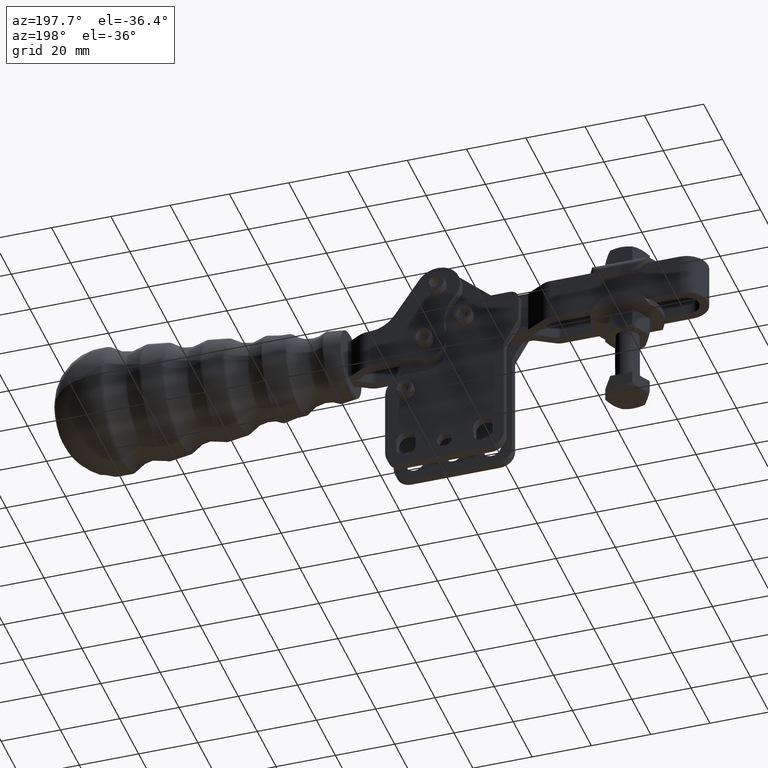
[diagram: clean part render]
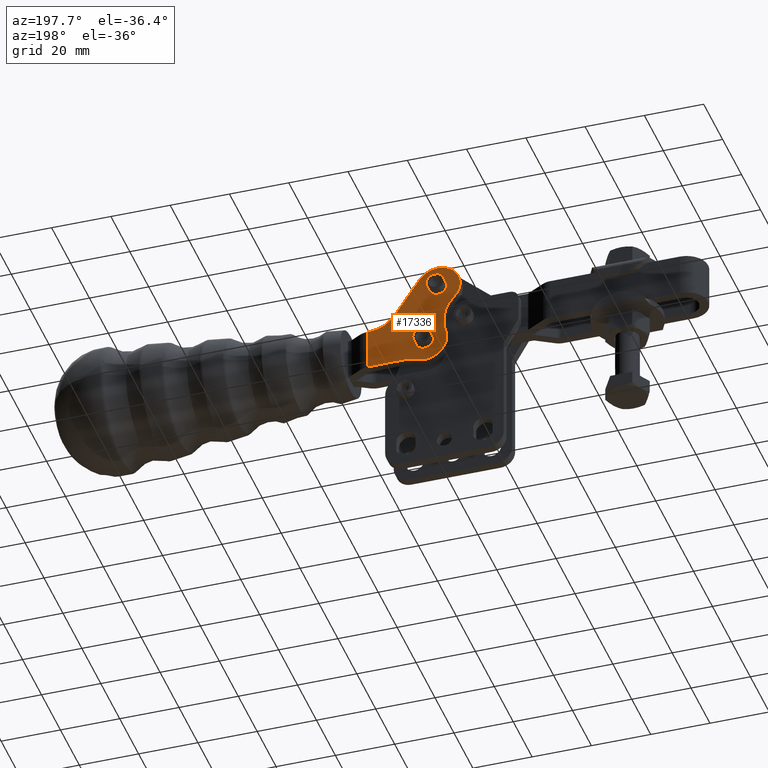
[diagram: same view with one face highlighted and labeled with its STEP entity id]
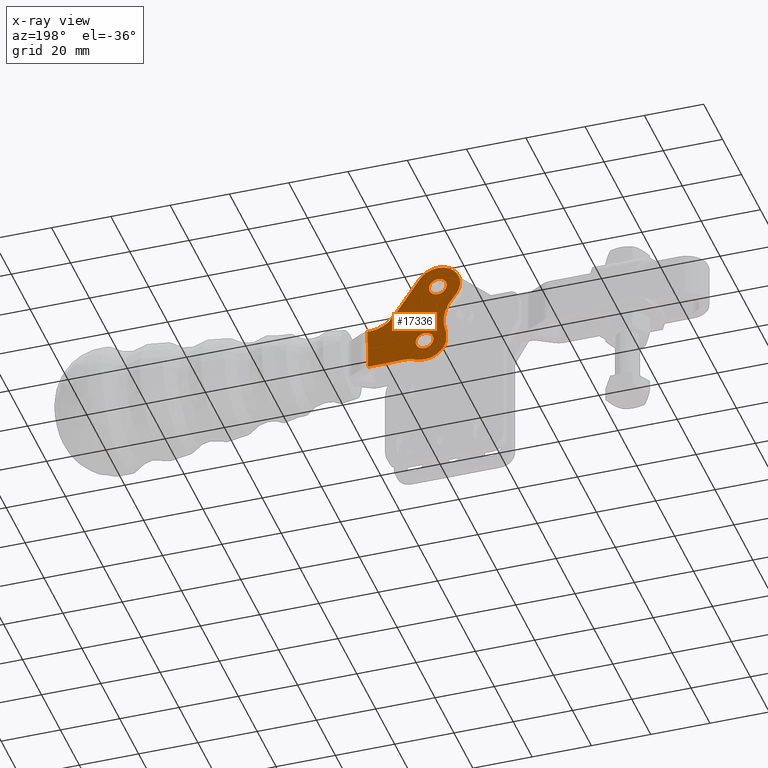
[diagram: x-ray of the same camera — body ghosted, the highlighted face saturated]
A machine part, auxiliary view. The second image highlights one B-rep face of the part: STEP entity #17336.
The next image is the same camera in x-ray: the body ghosted, the highlighted face saturated — about 0% of this face is hidden behind the body in this view.
In plain terms, the highlighted planar face has unit normal (0, -1, 0).
Its self-contained STEP definition (entity closure, byte-faithful):
#2683=CARTESIAN_POINT('',(83.532940552162657,-60.299175078525082,2.097813276001217));
#2684=VERTEX_POINT('',#2683);
#2693=CARTESIAN_POINT('',(87.126992806506863,-60.299175078525082,-2.706641780822953));
#2694=VERTEX_POINT('',#2693);
#2695=CARTESIAN_POINT('',(85.329966679333154,-60.299175078525082,-0.304414252412064));
#2696=DIRECTION('',(1.922588E-016,-1.0,-2.223147E-018));
#2697=DIRECTION('',(0.999933151699302,1.922716E-016,-0.011562531414043));
#2698=AXIS2_PLACEMENT_3D('',#2695,#2696,#2697);
#2699=CIRCLE('',#2698,3.000000000000000);
#2700=EDGE_CURVE('',#2694,#2684,#2699,.T.);
#3001=CARTESIAN_POINT('',(79.045874074594309,-60.299175078525067,22.612837878128385));
#3002=VERTEX_POINT('',#3001);
#3011=CARTESIAN_POINT('',(82.639926328938515,-60.299175078525067,17.808382821304217));
#3012=VERTEX_POINT('',#3011);
#3013=CARTESIAN_POINT('',(80.842900201764792,-60.299175078525067,20.210610349715093));
#3014=DIRECTION('',(1.922588E-016,-1.0,-2.223147E-018));
#3015=DIRECTION('',(0.999933151699302,1.922716E-016,-0.011562531414043));
#3016=AXIS2_PLACEMENT_3D('',#3013,#3014,#3015);
#3017=CIRCLE('',#3016,3.000000000000000);
#3018=EDGE_CURVE('',#3012,#3002,#3017,.T.);
#6531=CARTESIAN_POINT('',(74.482539480592322,-60.299175078525067,24.185004831465285));
#6532=VERTEX_POINT('',#6531);
#6541=CARTESIAN_POINT('',(75.370947535081626,-60.299175078525082,15.081503798513513));
#6542=VERTEX_POINT('',#6541);
#6543=CARTESIAN_POINT('',(80.842900201764792,-60.299175078525067,20.210610349715093));
#6544=DIRECTION('',(3.407008E-016,-1.000000000000000,2.327372E-016));
#6545=DIRECTION('',(0.825729280930482,4.126059E-016,0.564066622495987));
#6546=AXIS2_PLACEMENT_3D('',#6543,#6544,#6545);
#6547=CIRCLE('',#6546,7.499999999999999);
#6548=EDGE_CURVE('',#6532,#6542,#6547,.T.);
#11357=CARTESIAN_POINT('',(78.101346938202013,-60.299175078525082,-2.303678276529251));
#11358=VERTEX_POINT('',#11357);
#11398=CARTESIAN_POINT('',(78.101346938201957,-60.299175078525082,1.694849771704940));
#11399=VERTEX_POINT('',#11398);
#11406=CARTESIAN_POINT('',(78.101346938201957,-60.299175078525082,1.694849771704940));
#11407=DIRECTION('',(0.0,0.0,-1.0));
#11408=VECTOR('',#11407,3.998528048234191);
#11409=LINE('',#11406,#11408);
#11410=EDGE_CURVE('',#11399,#11358,#11409,.T.);
#16836=CARTESIAN_POINT('',(87.035869808743399,-60.299175078525067,24.441110018434991));
#16837=VERTEX_POINT('',#16836);
#16844=CARTESIAN_POINT('',(80.842900201764792,-60.299175078525067,20.210610349715093));
#16845=DIRECTION('',(3.407008E-016,-1.000000000000000,2.327372E-016));
#16846=DIRECTION('',(0.825729280930482,4.126059E-016,0.564066622495987));
#16847=AXIS2_PLACEMENT_3D('',#16844,#16845,#16846);
#16848=CIRCLE('',#16847,7.499999999999999);
#16849=EDGE_CURVE('',#16837,#6532,#16848,.T.);
#16870=CARTESIAN_POINT('',(103.784573399038860,-60.299175078525067,7.482724334639389));
#16871=VERTEX_POINT('',#16870);
#16878=CARTESIAN_POINT('',(95.642905903874464,-60.299175078525067,11.841389626672509));
#16879=VERTEX_POINT('',#16878);
#16880=CARTESIAN_POINT('',(103.900198713179260,-60.299175078525067,17.482055851632374));
#16881=DIRECTION('',(-3.407008E-016,1.000000000000000,-2.327372E-016));
#16882=DIRECTION('',(0.825729280930482,4.126059E-016,0.564066622495987));
#16883=AXIS2_PLACEMENT_3D('',#16880,#16881,#16882);
#16884=CIRCLE('',#16883,10.000000000000018);
#16885=EDGE_CURVE('',#16871,#16879,#16884,.T.);
#16908=CARTESIAN_POINT('',(95.642905903874464,-60.299175078525067,11.841389626672509));
#16909=DIRECTION('',(-0.564066622495987,0.0,0.825729280930481));
#16910=VECTOR('',#16909,15.258899838896784);
#16911=LINE('',#16908,#16910);
#16912=EDGE_CURVE('',#16879,#16837,#16911,.T.);
#16925=CARTESIAN_POINT('',(78.216404325734729,-60.299175078525082,2.071976002042638));
#16926=VERTEX_POINT('',#16925);
#16927=CARTESIAN_POINT('',(65.886229579497453,-60.299175078525082,6.191052443097452));
#16928=DIRECTION('',(-4.459699E-017,1.0,1.489828E-017));
#16929=DIRECTION('',(-0.948474980479790,-4.701968E-017,0.316852033927293));
#16930=AXIS2_PLACEMENT_3D('',#16927,#16928,#16929);
#16931=CIRCLE('',#16930,12.999999999999998);
#16932=EDGE_CURVE('',#6542,#16926,#16931,.T.);
#17049=CARTESIAN_POINT('',(104.566241619771660,-60.299175078525067,7.473685667062239));
#17050=VERTEX_POINT('',#17049);
#17068=CARTESIAN_POINT('',(104.404366179975070,-60.299175078525082,-6.525378456728000));
#17069=VERTEX_POINT('',#17068);
#17077=CARTESIAN_POINT('',(104.566241619771660,-60.299175078525067,7.473685667062239));
#17078=DIRECTION('',(-0.011562531414042,-1.015061E-015,-0.999933151699302));
#17079=VECTOR('',#17078,14.000000000000011);
#17080=LINE('',#17077,#17079);
#17081=EDGE_CURVE('',#17050,#17069,#17080,.T.);
#17243=CARTESIAN_POINT('',(85.329966679333154,-60.299175078525082,-0.304414252412064));
#17244=DIRECTION('',(4.459699E-017,-1.0,-1.489828E-017));
#17245=DIRECTION('',(-0.948474980479790,-4.701968E-017,0.316852033927294));
#17246=AXIS2_PLACEMENT_3D('',#17243,#17244,#17245);
#17247=CIRCLE('',#17246,7.500000000000000);
#17248=EDGE_CURVE('',#16926,#11399,#17247,.T.);
#17253=CARTESIAN_POINT('',(127.341487724109920,-60.299175078525067,3.147293824833803));
#17254=DIRECTION('',(0.0,-1.0,0.0));
#17255=DIRECTION('',(0.999933151699302,0.0,-0.011562531414043));
#17256=AXIS2_PLACEMENT_3D('',#17253,#17254,#17255);
#17257=PLANE('',#17256);
#17258=ORIENTED_EDGE('',*,*,#11410,.F.);
#17259=ORIENTED_EDGE('',*,*,#17248,.F.);
#17260=ORIENTED_EDGE('',*,*,#16932,.F.);
#17261=ORIENTED_EDGE('',*,*,#6548,.F.);
#17262=ORIENTED_EDGE('',*,*,#16849,.F.);
#17263=ORIENTED_EDGE('',*,*,#16912,.F.);
#17264=ORIENTED_EDGE('',*,*,#16885,.F.);
#17265=CARTESIAN_POINT('',(104.566241619771660,-60.299175078525067,7.473685667062239));
#17266=DIRECTION('',(-0.999933151699302,0.0,0.011562531414043));
#17267=VECTOR('',#17266,0.781720477418334);
#17268=LINE('',#17265,#17267);
#17269=EDGE_CURVE('',#17050,#16871,#17268,.T.);
#17270=ORIENTED_EDGE('',*,*,#17269,.F.);
#17271=ORIENTED_EDGE('',*,*,#17081,.T.);
#17272=CARTESIAN_POINT('',(92.348841061111756,-60.299175078525082,-6.385976750061157));
#17273=VERTEX_POINT('',#17272);
#17274=CARTESIAN_POINT('',(92.348841061111756,-60.299175078525082,-6.385976750061157));
#17275=DIRECTION('',(0.999933151699302,0.0,-0.011562531414043));
#17276=VECTOR('',#17275,12.056331064107603);
#17277=LINE('',#17274,#17276);
#17278=EDGE_CURVE('',#17273,#17069,#17277,.T.);
#17279=ORIENTED_EDGE('',*,*,#17278,.F.);
#17280=CARTESIAN_POINT('',(88.288501994035215,-60.299175078525082,-7.196225972972971));
#17281=VERTEX_POINT('',#17280);
#17282=CARTESIAN_POINT('',(92.233215746971325,-60.299175078525089,-16.385308267054175));
#17283=DIRECTION('',(-5.142599E-018,1.000000000000000,-4.447344E-016));
#17284=DIRECTION('',(-0.011562531414043,-4.447641E-016,-0.999933151699302));
#17285=AXIS2_PLACEMENT_3D('',#17282,#17283,#17284);
#17286=CIRCLE('',#17285,10.0);
#17287=EDGE_CURVE('',#17281,#17273,#17286,.T.);
#17288=ORIENTED_EDGE('',*,*,#17287,.F.);
#17289=CARTESIAN_POINT('',(85.329966679333154,-60.299175078525082,-0.304414252412064));
#17290=DIRECTION('',(4.459699E-017,-1.0,-1.489828E-017));
#17291=DIRECTION('',(-0.948474980479790,-4.701968E-017,0.316852033927294));
#17292=AXIS2_PLACEMENT_3D('',#17289,#17290,#17291);
#17293=CIRCLE('',#17292,7.500000000000000);
#17294=EDGE_CURVE('',#11358,#17281,#17293,.T.);
#17295=ORIENTED_EDGE('',*,*,#17294,.F.);
#17296=EDGE_LOOP('',(#17258,#17259,#17260,#17261,#17262,#17263,#17264,#17270,#17271,#17279,#17288,#17295));
#17297=FACE_OUTER_BOUND('',#17296,.T.);
#17298=CARTESIAN_POINT('',(82.330167224235225,-60.299175078525082,-0.269726658169935));
#17299=VERTEX_POINT('',#17298);
#17300=CARTESIAN_POINT('',(85.329966679333154,-60.299175078525082,-0.304414252412064));
#17301=DIRECTION('',(1.922588E-016,-1.0,-2.223147E-018));
#17302=DIRECTION('',(0.999933151699302,1.922716E-016,-0.011562531414043));
#17303=AXIS2_PLACEMENT_3D('',#17300,#17301,#17302);
#17304=CIRCLE('',#17303,3.000000000000000);
#17305=EDGE_CURVE('',#17299,#2694,#17304,.T.);
#17306=ORIENTED_EDGE('',*,*,#17305,.T.);
#17307=ORIENTED_EDGE('',*,*,#2700,.T.);
#17308=CARTESIAN_POINT('',(85.329966679333154,-60.299175078525082,-0.304414252412064));
#17309=DIRECTION('',(1.922588E-016,-1.0,-2.223147E-018));
#17310=DIRECTION('',(0.999933151699302,1.922716E-016,-0.011562531414043));
#17311=AXIS2_PLACEMENT_3D('',#17308,#17309,#17310);
#17312=CIRCLE('',#17311,3.000000000000000);
#17313=EDGE_CURVE('',#2684,#17299,#17312,.T.);
#17314=ORIENTED_EDGE('',*,*,#17313,.T.);
#17315=EDGE_LOOP('',(#17306,#17307,#17314));
#17316=FACE_BOUND('',#17315,.T.);
#17317=CARTESIAN_POINT('',(77.843100746666892,-60.299175078525067,20.245297943957219));
#17318=VERTEX_POINT('',#17317);
#17319=CARTESIAN_POINT('',(80.842900201764792,-60.299175078525067,20.210610349715093));
#17320=DIRECTION('',(1.922588E-016,-1.0,-2.223147E-018));
#17321=DIRECTION('',(0.999933151699302,1.922716E-016,-0.011562531414043));
#17322=AXIS2_PLACEMENT_3D('',#17319,#17320,#17321);
#17323=CIRCLE('',#17322,3.000000000000000);
#17324=EDGE_CURVE('',#17318,#3012,#17323,.T.);
#17325=ORIENTED_EDGE('',*,*,#17324,.T.);
#17326=ORIENTED_EDGE('',*,*,#3018,.T.);
#17327=CARTESIAN_POINT('',(80.842900201764792,-60.299175078525067,20.210610349715093));
#17328=DIRECTION('',(1.922588E-016,-1.0,-2.223147E-018));
#17329=DIRECTION('',(0.999933151699302,1.922716E-016,-0.011562531414043));
#17330=AXIS2_PLACEMENT_3D('',#17327,#17328,#17329);
#17331=CIRCLE('',#17330,3.000000000000000);
#17332=EDGE_CURVE('',#3002,#17318,#17331,.T.);
#17333=ORIENTED_EDGE('',*,*,#17332,.T.);
#17334=EDGE_LOOP('',(#17325,#17326,#17333));
#17335=FACE_BOUND('',#17334,.T.);
#17336=ADVANCED_FACE('',(#17297,#17316,#17335),#17257,.F.);